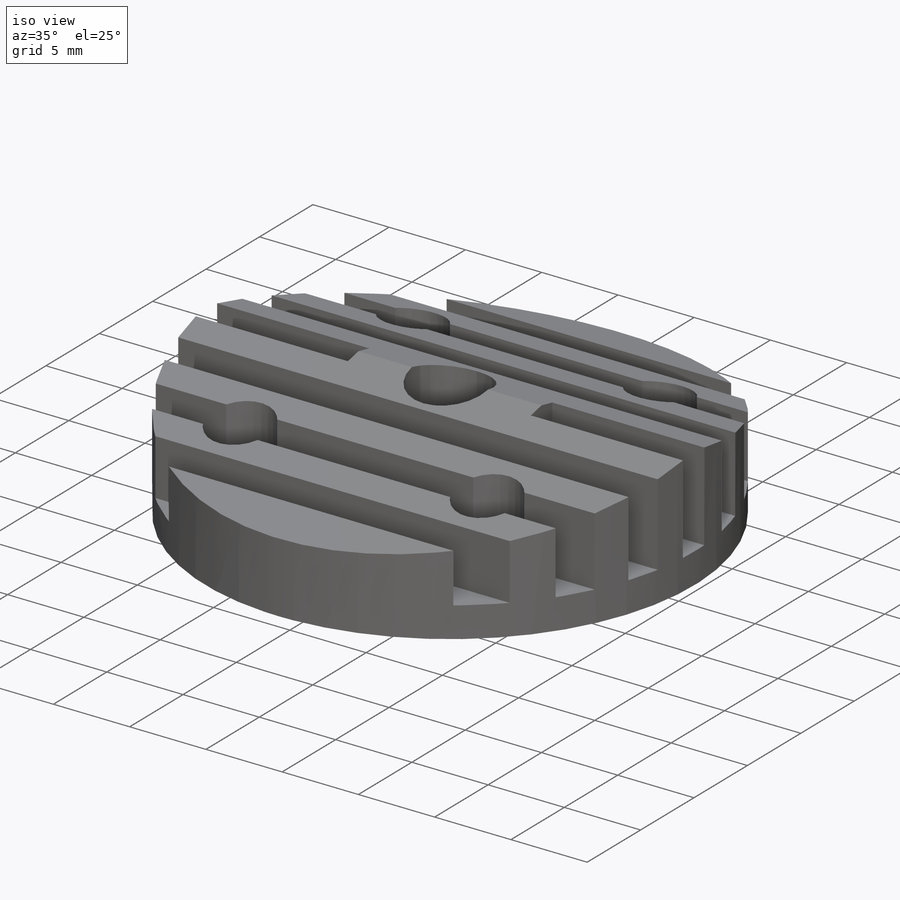
[diagram: iso view]
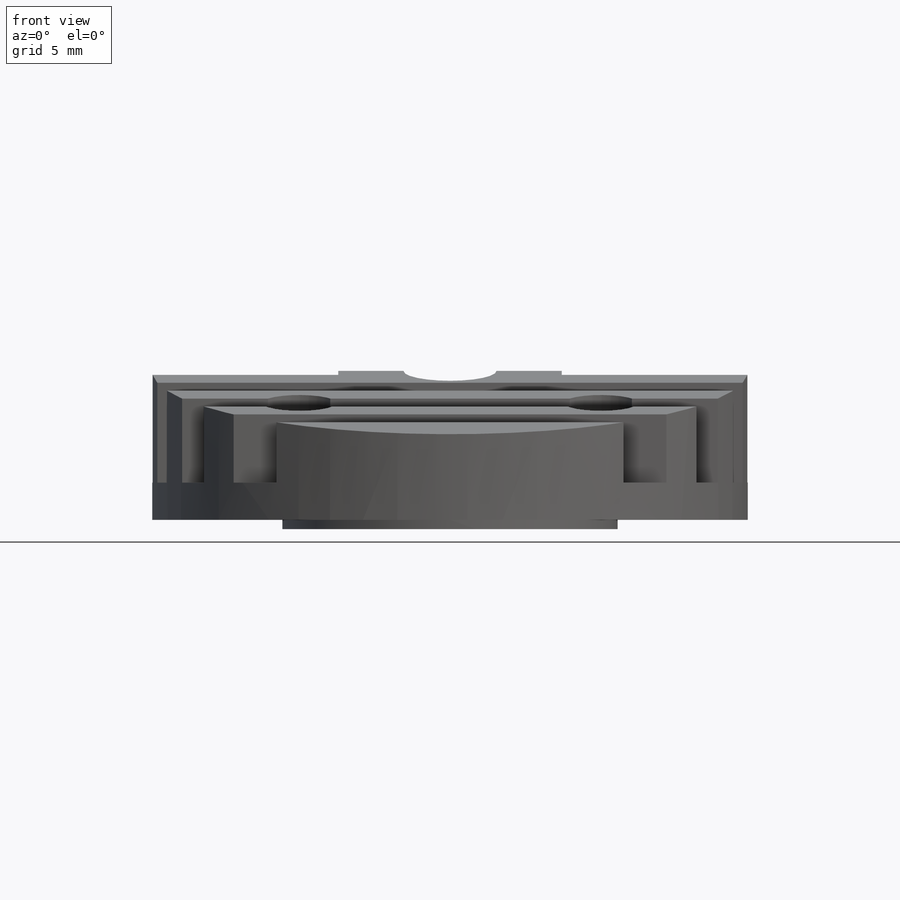
[diagram: front view]
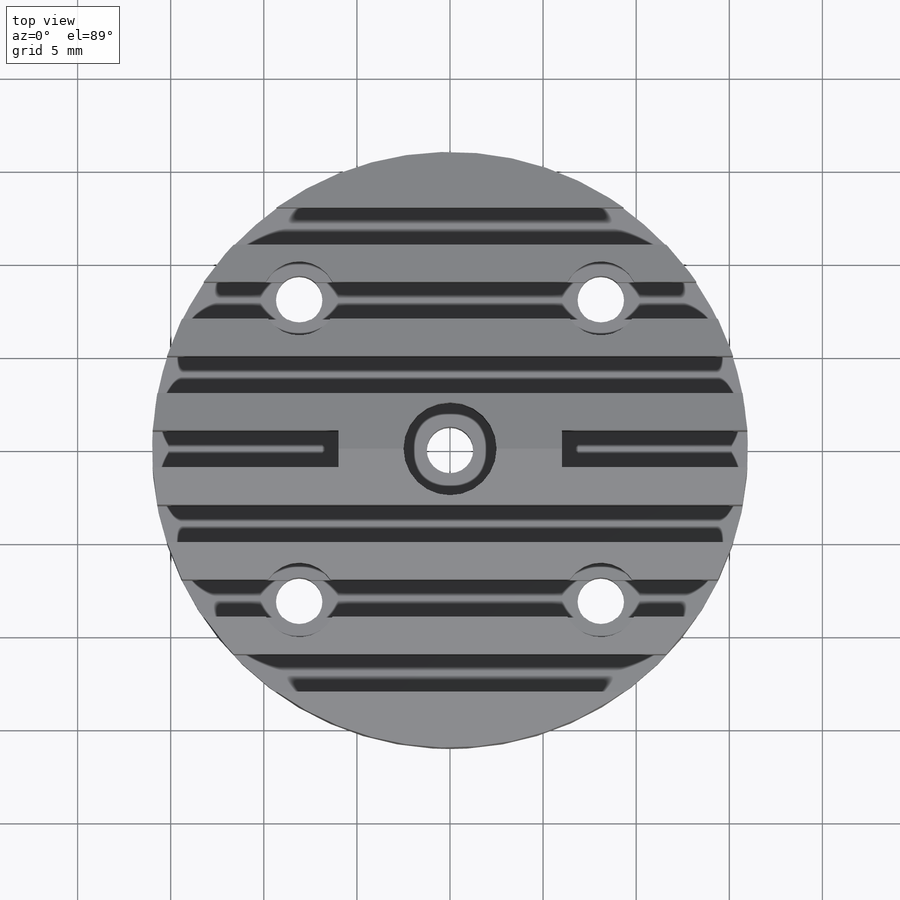
[diagram: top view]
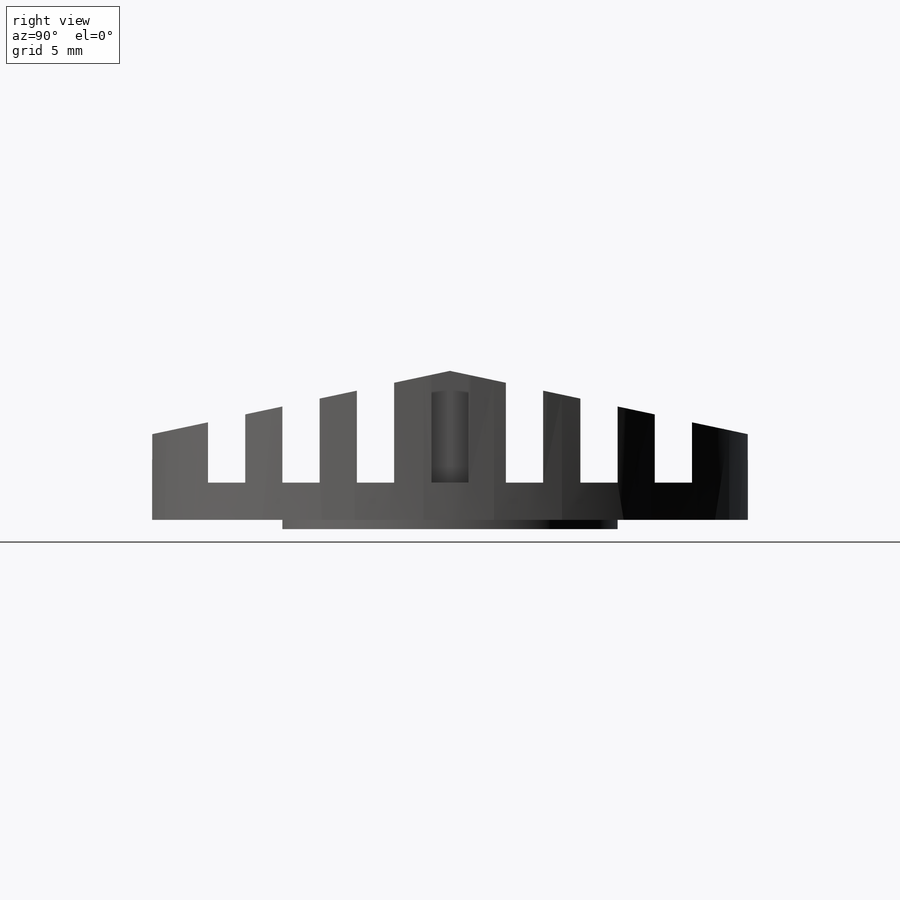
[diagram: right view]
SOLIDWORKS PART (.sldprt)
format: sldprt  version: not decoded by parser v0  size: 370,176 bytes
history: native  units: mm
features: sketch x9, cut_extrude x3, extrude x2, hole x2, material x1, pattern_circular x1, mirror x1 (+12 scaffold rows collapsed)
feature tree (31):
  scaffold x12  (default folders/planes/origin — collapsed)
  material  "Material <not specified>"
  sketch  "Sketch2"  dims[D1=32.0mm]
  extrude  "Boss-Extrude1"  Depth=8mm
  sketch  "Sketch3"  dims[D1=3.0mm D2=2.0mm D3=2.0mm D4=2.0mm D5=2.0mm D6=2.0mm D7=2.0mm D8=6.0mm]
  cut_extrude  "Cut-Extrude1"  Depth=6mm
  sketch  "Sketch4"  dims[D1=5.0mm]
  cut_extrude  "Cut-Extrude2"  Depth=4mm
  hole  "Tap Drill for M3x0.5 Tap1"  Diameter=2.5mm Depth=5.5mm
  sketch  "Sketch7"
  sketch  "Sketch6"  dims[hole-wizard template sketch: 47 standard entries collapsed; hole parameters kept: c15.Hole Depth=5.5mm c15.D3=~14.816244mm c15.Drill Angle=118.0deg]
  sketch  "Sketch8"  dims[D1=18.0mm D2=1.0mm]
  extrude  "Boss-Extrude2"  Depth=0.5mm
  hole  "CBORE for M4 Pan Head Machine Screw1"  Diameter=2.5mm Depth=8.001mm
  sketch  "Sketch11"  dims[c1.D1=~16.433139mm c2.D1=45.0deg c2.D2=8.1mm c2.D3=8.1mm]
  sketch  "Sketch10"  dims[hole-wizard template sketch: 41 standard entries collapsed; hole parameters kept: c12.Thru Hole Dia.=2.5mm c12.Thru Hole Depth=8.001mm c12.C'Bore Dia.=4.0mm c12.C'Bore Depth=4.0mm]
  pattern_circular  "CirPattern1"  Count=4 Angle=360deg
  sketch  "Sketch12"  dims[c1.D1=~17.222166mm c2.D1=12.0deg]
  cut_extrude  "Cut-Extrude3"  Depth=40.5mm
  mirror  "Mirror1"
decode coverage: 16 of 18 modeling features carry decoded parameters
note: ~ marks probable driven/reference dimensions
note: suppression state not decoded; provenance and decode notes live in map.json
